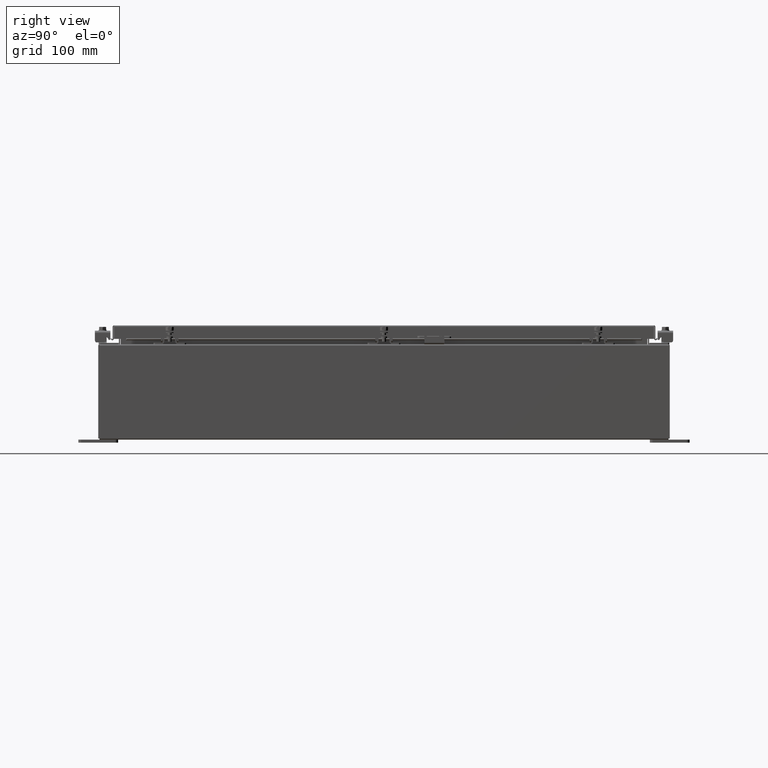
[diagram: clean part render]
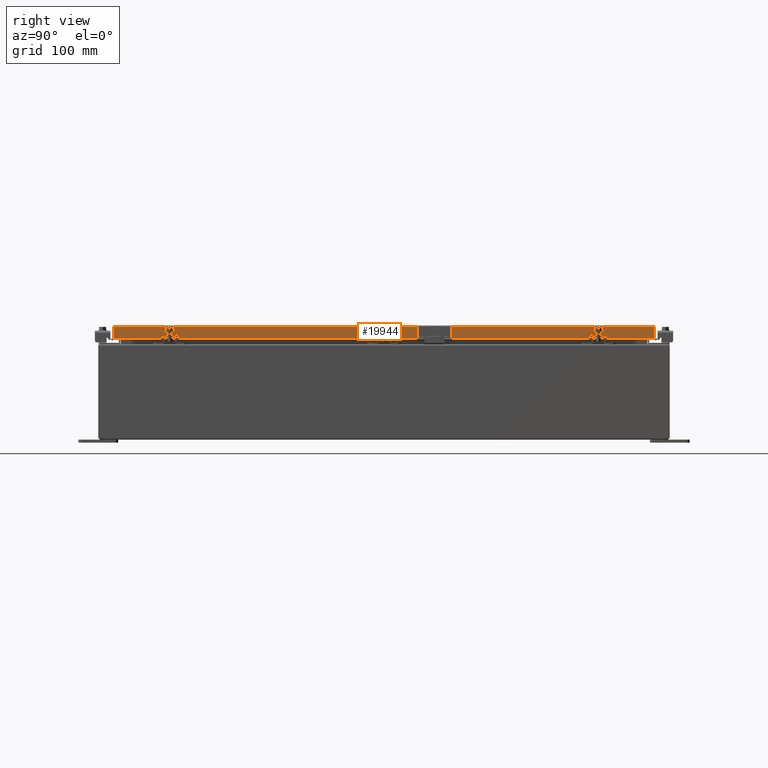
[diagram: same view with one face highlighted and labeled with its STEP entity id]
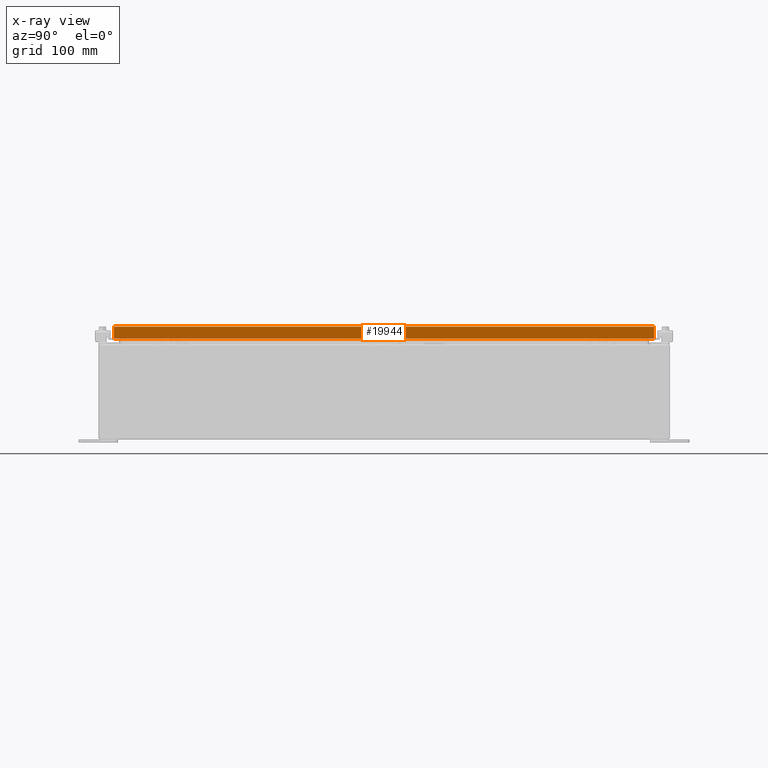
[diagram: x-ray of the same camera — body ghosted, the highlighted face saturated]
A machine part, right view. The second image highlights one B-rep face of the part: STEP entity #19944.
The next image is the same camera in x-ray: the body ghosted, the highlighted face saturated — about 0% of this face is hidden behind the body in this view.
In plain terms, the highlighted planar face has unit normal (1, 0, 0).
Its self-contained STEP definition (entity closure, byte-faithful):
#133 = CARTESIAN_POINT ( 'NONE',  ( 11.07799999999999600, -17.00515786437626500, -0.08770000000000007000 ) ) ;
#1056 = DIRECTION ( 'NONE',  ( 0.0000000000000000000, -1.000000000000000000, 0.0000000000000000000 ) ) ;
#2130 = ORIENTED_EDGE ( 'NONE', *, *, #19485, .T. ) ;
#2835 = ORIENTED_EDGE ( 'NONE', *, *, #4963, .F. ) ;
#3564 = VERTEX_POINT ( 'NONE', #7781 ) ;
#3803 = DIRECTION ( 'NONE',  ( -2.818880942772360500E-015, -6.982962677686269100E-015, 1.000000000000000000 ) ) ;
#3969 = LINE ( 'NONE', #29789, #11636 ) ;
#4963 = EDGE_CURVE ( 'NONE', #32666, #3564, #12974, .T. ) ;
#6139 = AXIS2_PLACEMENT_3D ( 'NONE', #7812, #30545, #11109 ) ;
#6336 = VECTOR ( 'NONE', #1056, 39.37007874015748100 ) ;
#7002 = VECTOR ( 'NONE', #20106, 39.37007874015748100 ) ;
#7781 = CARTESIAN_POINT ( 'NONE',  ( 11.07799999999998900, 16.25515786437628000, -0.8500000000000016400 ) ) ;
#7812 = CARTESIAN_POINT ( 'NONE',  ( 11.07799999999999600, 0.0000000000000000000, 3.148837674004377800E-014 ) ) ;
#8511 = EDGE_LOOP ( 'NONE', ( #34890, #26724, #42147, #2835, #2130, #16966 ) ) ;
#8530 = DIRECTION ( 'NONE',  ( 0.0000000000000000000, -1.000000000000000000, 0.0000000000000000000 ) ) ;
#9499 = EDGE_CURVE ( 'NONE', #3564, #23371, #31286, .T. ) ;
#10267 = CARTESIAN_POINT ( 'NONE',  ( 11.07799999999999800, 17.00515786437628000, -0.8499999999999996400 ) ) ;
#10957 = PLANE ( 'NONE',  #6139 ) ;
#11109 = DIRECTION ( 'NONE',  ( 2.818880942772360100E-015, 0.0000000000000000000, -1.000000000000000000 ) ) ;
#11636 = VECTOR ( 'NONE', #3803, 39.37007874015748100 ) ;
#12974 = LINE ( 'NONE', #34939, #6336 ) ;
#14015 = VECTOR ( 'NONE', #8530, 39.37007874015748100 ) ;
#14521 = CARTESIAN_POINT ( 'NONE',  ( 11.07799999999999800, -17.09399999999999800, -0.8499999999999996400 ) ) ;
#15137 = EDGE_CURVE ( 'NONE', #40745, #38527, #3969, .T. ) ;
#15870 = CARTESIAN_POINT ( 'NONE',  ( 11.07799999999999800, -17.00515786437626200, -0.8499999999999996400 ) ) ;
#16966 = ORIENTED_EDGE ( 'NONE', *, *, #31244, .T. ) ;
#18772 = LINE ( 'NONE', #14521, #26328 ) ;
#19275 = CARTESIAN_POINT ( 'NONE',  ( 11.07799999999999600, 0.0000000000000000000, -0.08770000000000007000 ) ) ;
#19485 = EDGE_CURVE ( 'NONE', #32666, #38271, #26312, .T. ) ;
#19944 = ADVANCED_FACE ( 'NONE', ( #41583 ), #10957, .T. ) ;
#20106 = DIRECTION ( 'NONE',  ( -2.818880942772360500E-015, -6.982962677686269100E-015, 1.000000000000000000 ) ) ;
#23371 = VERTEX_POINT ( 'NONE', #39571 ) ;
#26312 = LINE ( 'NONE', #33054, #7002 ) ;
#26328 = VECTOR ( 'NONE', #40524, 39.37007874015748100 ) ;
#26724 = ORIENTED_EDGE ( 'NONE', *, *, #33344, .F. ) ;
#29789 = CARTESIAN_POINT ( 'NONE',  ( 11.07799999999999600, -17.00515786437626500, -0.07469999999999978000 ) ) ;
#30545 = DIRECTION ( 'NONE',  ( 1.000000000000000000, 0.0000000000000000000, 2.818880942772360100E-015 ) ) ;
#31244 = EDGE_CURVE ( 'NONE', #38271, #38527, #40557, .T. ) ;
#31286 = LINE ( 'NONE', #34417, #14015 ) ;
#32666 = VERTEX_POINT ( 'NONE', #10267 ) ;
#33054 = CARTESIAN_POINT ( 'NONE',  ( 11.07799999999999600, 17.00515786437627600, 1.502347594351464400E-013 ) ) ;
#33344 = EDGE_CURVE ( 'NONE', #23371, #40745, #18772, .T. ) ;
#34417 = CARTESIAN_POINT ( 'NONE',  ( 11.07799999999998900, 16.25515786437628300, -0.8500000000000016400 ) ) ;
#34890 = ORIENTED_EDGE ( 'NONE', *, *, #15137, .F. ) ;
#34939 = CARTESIAN_POINT ( 'NONE',  ( 11.07799999999999800, -17.09399999999999800, -0.8499999999999996400 ) ) ;
#35615 = DIRECTION ( 'NONE',  ( 0.0000000000000000000, -1.000000000000000000, 0.0000000000000000000 ) ) ;
#38271 = VERTEX_POINT ( 'NONE', #40956 ) ;
#38527 = VERTEX_POINT ( 'NONE', #133 ) ;
#39540 = VECTOR ( 'NONE', #35615, 39.37007874015748100 ) ;
#39571 = CARTESIAN_POINT ( 'NONE',  ( 11.07799999999998900, -16.25515786437626200, -0.8500000000000016400 ) ) ;
#40524 = DIRECTION ( 'NONE',  ( 0.0000000000000000000, -1.000000000000000000, 0.0000000000000000000 ) ) ;
#40557 = LINE ( 'NONE', #19275, #39540 ) ;
#40745 = VERTEX_POINT ( 'NONE', #15870 ) ;
#40956 = CARTESIAN_POINT ( 'NONE',  ( 11.07799999999999600, 17.00515786437627600, -0.08770000000000007000 ) ) ;
#41583 = FACE_OUTER_BOUND ( 'NONE', #8511, .T. ) ;
#42147 = ORIENTED_EDGE ( 'NONE', *, *, #9499, .F. ) ;